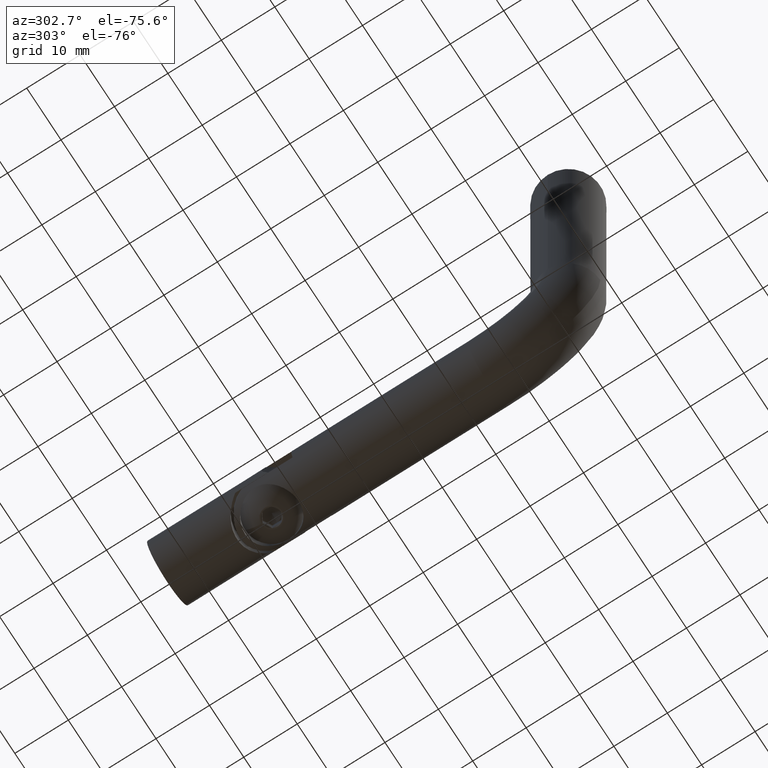
[diagram: clean part render]
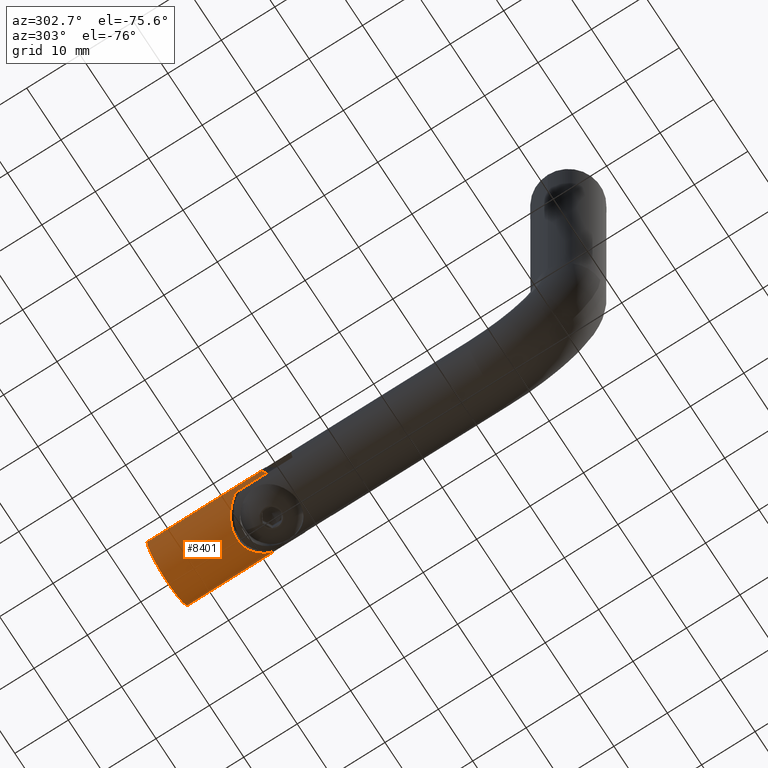
[diagram: same view with one face highlighted and labeled with its STEP entity id]
A machine part, auxiliary view. The second image highlights one B-rep face of the part: STEP entity #8401.
In plain terms, the highlighted cylindrical surface (partial cylindrical patch) has radius 6 mm, axis along (0, -1, -0).
Its self-contained STEP definition (entity closure, byte-faithful):
#236 = CARTESIAN_POINT ( 'NONE',  ( -9.170508023194263639E-30, 12.87000000000002764, -6.000000000000016875 ) ) ;
#402 = AXIS2_PLACEMENT_3D ( 'NONE', #13211, #9004, #3845 ) ;
#562 = CARTESIAN_POINT ( 'NONE',  ( 0.7178966846549249547, -8.725317248223252165, -5.959528307360762334 ) ) ;
#625 = CARTESIAN_POINT ( 'NONE',  ( -1.781184815116626976E-22, -8.629999999999993676, -6.000000000000000888 ) ) ;
#737 = CARTESIAN_POINT ( 'NONE',  ( 1.390786881303304634, -8.974283924182470784, 5.846407991891544143 ) ) ;
#1028 = DIRECTION ( 'NONE',  ( -6.286235338479925563E-31, 1.000000000000000000, -2.465190328815640818E-32 ) ) ;
#1081 = CARTESIAN_POINT ( 'NONE',  ( 5.423960505446898672, -0.6579652600255394557, -2.584577807946753847 ) ) ;
#1144 = CARTESIAN_POINT ( 'NONE',  ( 5.761247172812374195, -0.3497383057324652822, 1.684051163816295160 ) ) ;
#1190 = CARTESIAN_POINT ( 'NONE',  ( 5.999248220788544472, -0.1306939498043533932, 0.3547117963094787441 ) ) ;
#1251 = CARTESIAN_POINT ( 'NONE',  ( 3.289085795271214252, -2.500828911946886279, -5.026328002555664476 ) ) ;
#1305 = CARTESIAN_POINT ( 'NONE',  ( 5.772953724843405965, -0.3391289616815173491, -1.667957150375650510 ) ) ;
#1439 = CARTESIAN_POINT ( 'NONE',  ( 7.350550849581413190E-16, -8.629999999999991900, 6.000000000000000888 ) ) ;
#1593 = DIRECTION ( 'NONE',  ( 6.286235338479925563E-31, -1.000000000000000000, -1.503209982180670017E-46 ) ) ;
#1655 = CARTESIAN_POINT ( 'NONE',  ( 7.347880794884302160E-16, 12.87000000000002764, 6.000000000000000888 ) ) ;
#1792 = CARTESIAN_POINT ( 'NONE',  ( 2.000000000000001776, -9.331562118716426824, 5.656854249492390352 ) ) ;
#1815 = LINE ( 'NONE', #7816, #16562 ) ;
#1855 = B_SPLINE_CURVE_WITH_KNOTS ( 'NONE', 3,
 ( #4518, #12651, #1987, #15353, #562, #1929, #11348, #625 ),
 .UNSPECIFIED., .F., .F.,
 ( 4, 2, 2, 4 ),
 ( 0.000000000000000000, 0.001089366321444469382, 0.001634049482166703314, 0.002178732642888937462 ),
 .UNSPECIFIED. ) ;
#1929 = CARTESIAN_POINT ( 'NONE',  ( 0.3652049007636490874, -8.650648842784010029, -5.991492191143283463 ) ) ;
#1987 = CARTESIAN_POINT ( 'NONE',  ( 1.394073268670141141, -8.975627473159983438, -5.845784188586019781 ) ) ;
#2050 = LINE ( 'NONE', #13040, #3105 ) ;
#2556 = EDGE_CURVE ( 'NONE', #4611, #3401, #2050, .T. ) ;
#2558 = CARTESIAN_POINT ( 'NONE',  ( 3.752979125615186096, -2.122581578878854458, -4.690117934618137419 ) ) ;
#2616 = CARTESIAN_POINT ( 'NONE',  ( 4.952794118636137277, -1.082658898110000933, -3.400052577611191396 ) ) ;
#2666 = CARTESIAN_POINT ( 'NONE',  ( 5.857618955413414596, -0.2612316850687556036, -1.342569999754022803 ) ) ;
#2931 = ORIENTED_EDGE ( 'NONE', *, *, #5599, .F. ) ;
#3105 = VECTOR ( 'NONE', #4610, 1000.000000000000000 ) ;
#3401 = VERTEX_POINT ( 'NONE', #1792 ) ;
#3635 = VERTEX_POINT ( 'NONE', #1655 ) ;
#3845 = DIRECTION ( 'NONE',  ( -1.528418003865706344E-30, 0.000000000000000000, -1.000000000000000000 ) ) ;
#3862 = CARTESIAN_POINT ( 'NONE',  ( 5.712651829901446376, -0.3943036353007443040, 1.841811353009711771 ) ) ;
#3922 = CARTESIAN_POINT ( 'NONE',  ( 4.587803455469832592, -1.405943696212459182, -3.878477351499724612 ) ) ;
#4028 = VERTEX_POINT ( 'NONE', #1439 ) ;
#4030 = CARTESIAN_POINT ( 'NONE',  ( 5.882534994426073638, -0.2382795446612989143, 1.193528894263010676 ) ) ;
#4518 = CARTESIAN_POINT ( 'NONE',  ( 2.000000000000001776, -9.331562118716426824, -5.656854249492391240 ) ) ;
#4610 = DIRECTION ( 'NONE',  ( 6.286235338479925563E-31, -1.000000000000000000, 2.465190328815640818E-32 ) ) ;
#4611 = VERTEX_POINT ( 'NONE', #9862 ) ;
#4744 = CARTESIAN_POINT ( 'NONE',  ( -2.150426531879441036E-30, 12.87000000000002764, -6.000000000000000888 ) ) ;
#5101 = CARTESIAN_POINT ( 'NONE',  ( 2.000000000000001776, -13.13000000000000966, -5.656854249492394793 ) ) ;
#5201 = B_SPLINE_CURVE_WITH_KNOTS ( 'NONE', 3,
 ( #14121, #9912, #15408, #7194, #7362, #737, #10036, #6033 ),
 .UNSPECIFIED., .F., .F.,
 ( 4, 2, 2, 4 ),
 ( 0.02305034988274434413, 0.02359750021547526305, 0.02414465054820618198, 0.02523895121366801636 ),
 .UNSPECIFIED. ) ;
#5216 = CARTESIAN_POINT ( 'NONE',  ( 3.975293530976000689, -1.935158645607627736, -4.503502654860907839 ) ) ;
#5324 = ORIENTED_EDGE ( 'NONE', *, *, #8107, .F. ) ;
#5329 = CARTESIAN_POINT ( 'NONE',  ( 2.280312844726844368, -3.253327835416825575, 5.557748692812371161 ) ) ;
#5599 = EDGE_CURVE ( 'NONE', #3635, #13682, #6839, .T. ) ;
#5888 = FACE_OUTER_BOUND ( 'NONE', #8827, .T. ) ;
#6033 = CARTESIAN_POINT ( 'NONE',  ( 2.000000000000001776, -9.331562118716426824, 5.656854249492390352 ) ) ;
#6144 = VERTEX_POINT ( 'NONE', #13439 ) ;
#6322 = LINE ( 'NONE', #236, #8190 ) ;
#6497 = CARTESIAN_POINT ( 'NONE',  ( 5.417563057375730295, -0.6637814509404943442, 2.598081836858237903 ) ) ;
#6563 = CARTESIAN_POINT ( 'NONE',  ( 4.946369160099273188, -1.088395250008951765, 3.409320326200406370 ) ) ;
#6669 = CARTESIAN_POINT ( 'NONE',  ( 3.044363521539132922, -2.694246194308093756, 5.178050800947594290 ) ) ;
#6839 = CIRCLE ( 'NONE', #8293, 6.000000000000016875 ) ;
#6893 = ORIENTED_EDGE ( 'NONE', *, *, #11937, .T. ) ;
#7172 = VECTOR ( 'NONE', #1028, 1000.000000000000000 ) ;
#7194 = CARTESIAN_POINT ( 'NONE',  ( 0.7158752320172384609, -8.724666589287965124, 5.959812082990996629 ) ) ;
#7362 = CARTESIAN_POINT ( 'NONE',  ( 0.8905632812966883805, -8.779437427272680949, 5.935957435934050785 ) ) ;
#7504 = EDGE_CURVE ( 'NONE', #4611, #13576, #10249, .T. ) ;
#7816 = CARTESIAN_POINT ( 'NONE',  ( 7.347880794884249898E-16, 12.87000000000002764, 6.000000000000016875 ) ) ;
#7842 = CARTESIAN_POINT ( 'NONE',  ( 5.114414597132688201, -0.9376357314501287954, 3.153217728018646859 ) ) ;
#7956 = CARTESIAN_POINT ( 'NONE',  ( 6.000723816151056766, -0.1293318622469455670, -0.3288059539501533846 ) ) ;
#8020 = CARTESIAN_POINT ( 'NONE',  ( 3.742934206814904297, -2.130908857969864734, 4.697949625296734766 ) ) ;
#8107 = EDGE_CURVE ( 'NONE', #13682, #6144, #6322, .T. ) ;
#8190 = VECTOR ( 'NONE', #1593, 1000.000000000000000 ) ;
#8293 = AXIS2_PLACEMENT_3D ( 'NONE', #10185, #8582, #11493 ) ;
#8401 = ADVANCED_FACE ( 'NONE', ( #5888 ), #9248, .T. ) ;
#8582 = DIRECTION ( 'NONE',  ( -6.286235338479925563E-31, 1.000000000000000000, 1.503209982180670017E-46 ) ) ;
#8806 = ORIENTED_EDGE ( 'NONE', *, *, #15224, .T. ) ;
#8827 = EDGE_LOOP ( 'NONE', ( #2931, #6893, #11599, #16410, #11449, #12428, #8806, #5324 ) ) ;
#9004 = DIRECTION ( 'NONE',  ( 6.286235338479925563E-31, -1.000000000000000000, -1.503209982180670017E-46 ) ) ;
#9092 = EDGE_CURVE ( 'NONE', #4028, #3401, #5201, .T. ) ;
#9142 = CARTESIAN_POINT ( 'NONE',  ( 5.123235225486806321, -0.9297025914007924774, -3.138765813868538146 ) ) ;
#9194 = CARTESIAN_POINT ( 'NONE',  ( 4.384712526039706404, -1.583816360269783896, 4.106143652374576014 ) ) ;
#9248 = CYLINDRICAL_SURFACE ( 'NONE', #402, 6.000000000000016875 ) ;
#9258 = CARTESIAN_POINT ( 'NONE',  ( 5.969531893648559517, -0.1581532231148571888, 0.6925357023754538099 ) ) ;
#9311 = CARTESIAN_POINT ( 'NONE',  ( 5.549716450024922310, -0.5433403604385903529, 2.303755039783947911 ) ) ;
#9367 = CARTESIAN_POINT ( 'NONE',  ( 4.392014078432163515, -1.577439822165443761, -4.098134594496927186 ) ) ;
#9862 = CARTESIAN_POINT ( 'NONE',  ( 2.000000000000001776, -3.428437881283566302, 5.656854249492388576 ) ) ;
#9912 = CARTESIAN_POINT ( 'NONE',  ( 0.1811289808551275748, -8.629999999999993676, 6.000000000000000000 ) ) ;
#10036 = CARTESIAN_POINT ( 'NONE',  ( 1.702896183214881676, -9.145962835761798360, 5.761896311275334526 ) ) ;
#10185 = CARTESIAN_POINT ( 'NONE',  ( 0.000000000000000000, 12.87000000000002764, 3.081487911019577365E-30 ) ) ;
#10249 = B_SPLINE_CURVE_WITH_KNOTS ( 'NONE', 3,
 ( #13400, #5329, #10493, #6669, #16116, #8020, #15995, #9194, #17468, #6563, #7842, #6497, #9311, #3862, #1144, #13287, #4030, #9258, #1190, #7956, #13226, #2666, #1305, #10615, #1081, #9142, #2616, #3922, #9367, #5216, #2558, #1251, #10729, #17365, #11996, #17424 ),
 .UNSPECIFIED., .F., .F.,
 ( 4, 2, 2, 2, 2, 2, 2, 2, 2, 2, 2, 2, 2, 2, 2, 2, 2, 4 ),
 ( 9.158781407735333814E-18, 0.001016921674962630549, 0.002033843349925251991, 0.003050765024887873433, 0.004067686699850495309, 0.005084608374813117185, 0.006101530049775738193, 0.006609990887257048697, 0.007118451724738360069, 0.008135373399700978475, 0.009152295074663597749, 0.01016921674962621876, 0.01118613842458883630, 0.01220306009955145730, 0.01321998177451407658, 0.01423690344947669585, 0.01525382512443931513, 0.01627074679940193960 ),
 .UNSPECIFIED. ) ;
#10493 = CARTESIAN_POINT ( 'NONE',  ( 2.542605740416465920, -3.068139149413768418, 5.442013910058800974 ) ) ;
#10615 = CARTESIAN_POINT ( 'NONE',  ( 5.555008041940379115, -0.5385159396421967948, -2.291497636623336831 ) ) ;
#10729 = CARTESIAN_POINT ( 'NONE',  ( 3.048047065601215078, -2.691431441535458546, -5.175971153481376597 ) ) ;
#11348 = CARTESIAN_POINT ( 'NONE',  ( 0.1815171903020517952, -8.629999999999991900, -6.000000000000000000 ) ) ;
#11449 = ORIENTED_EDGE ( 'NONE', *, *, #7504, .T. ) ;
#11493 = DIRECTION ( 'NONE',  ( 1.528418003865706344E-30, 0.000000000000000000, 1.000000000000000000 ) ) ;
#11599 = ORIENTED_EDGE ( 'NONE', *, *, #9092, .T. ) ;
#11937 = EDGE_CURVE ( 'NONE', #3635, #4028, #1815, .T. ) ;
#11996 = CARTESIAN_POINT ( 'NONE',  ( 2.280411108807485210, -3.253266450332295445, -5.557713951213485437 ) ) ;
#12064 = LINE ( 'NONE', #5101, #7172 ) ;
#12428 = ORIENTED_EDGE ( 'NONE', *, *, #17387, .F. ) ;
#12549 = CARTESIAN_POINT ( 'NONE',  ( 2.000000000000001776, -9.331562118716426824, -5.656854249492391240 ) ) ;
#12651 = CARTESIAN_POINT ( 'NONE',  ( 1.703500756846858533, -9.146340509915026118, -5.761682562217520953 ) ) ;
#13040 = CARTESIAN_POINT ( 'NONE',  ( 2.000000000000001776, -13.13000000000000966, 5.656854249492385911 ) ) ;
#13199 = DIRECTION ( 'NONE',  ( 6.286235338479925563E-31, -1.000000000000000000, -1.503209982180670017E-46 ) ) ;
#13211 = CARTESIAN_POINT ( 'NONE',  ( 0.000000000000000000, 12.87000000000002764, 3.081487911019577365E-30 ) ) ;
#13226 = CARTESIAN_POINT ( 'NONE',  ( 5.971326675247827787, -0.1564961354008682359, -0.6763518082564611289 ) ) ;
#13287 = CARTESIAN_POINT ( 'NONE',  ( 5.846147438544885055, -0.2717645658995559432, 1.360351952762475669 ) ) ;
#13400 = CARTESIAN_POINT ( 'NONE',  ( 2.000000000000001776, -3.428437881283566302, 5.656854249492388576 ) ) ;
#13439 = CARTESIAN_POINT ( 'NONE',  ( -1.781184815116626976E-22, -8.629999999999993676, -6.000000000000000888 ) ) ;
#13576 = VERTEX_POINT ( 'NONE', #16288 ) ;
#13682 = VERTEX_POINT ( 'NONE', #4744 ) ;
#14121 = CARTESIAN_POINT ( 'NONE',  ( 7.350550849581413190E-16, -8.629999999999991900, 6.000000000000000888 ) ) ;
#15224 = EDGE_CURVE ( 'NONE', #16227, #6144, #1855, .T. ) ;
#15353 = CARTESIAN_POINT ( 'NONE',  ( 0.8898251915467624285, -8.779118293113166160, -5.936107259220854360 ) ) ;
#15408 = CARTESIAN_POINT ( 'NONE',  ( 0.3604527793834715887, -8.649869752173074744, 5.991820358306477523 ) ) ;
#15995 = CARTESIAN_POINT ( 'NONE',  ( 3.963077868403895199, -1.945530811190653520, 4.514436115276502015 ) ) ;
#16116 = CARTESIAN_POINT ( 'NONE',  ( 3.283542601463435684, -2.505207078728180381, 5.029774860045489682 ) ) ;
#16227 = VERTEX_POINT ( 'NONE', #12549 ) ;
#16288 = CARTESIAN_POINT ( 'NONE',  ( 2.000000000000001776, -3.428437881283566302, -5.656854249492388576 ) ) ;
#16410 = ORIENTED_EDGE ( 'NONE', *, *, #2556, .F. ) ;
#16562 = VECTOR ( 'NONE', #13199, 1000.000000000000000 ) ;
#17365 = CARTESIAN_POINT ( 'NONE',  ( 2.543575947902761758, -3.067485441664183465, -5.441644024836809201 ) ) ;
#17387 = EDGE_CURVE ( 'NONE', #16227, #13576, #12064, .T. ) ;
#17424 = CARTESIAN_POINT ( 'NONE',  ( 2.000000000000001776, -3.428437881283566302, -5.656854249492388576 ) ) ;
#17468 = CARTESIAN_POINT ( 'NONE',  ( 4.581546204605390749, -1.411438803455866031, 3.885803305584373479 ) ) ;